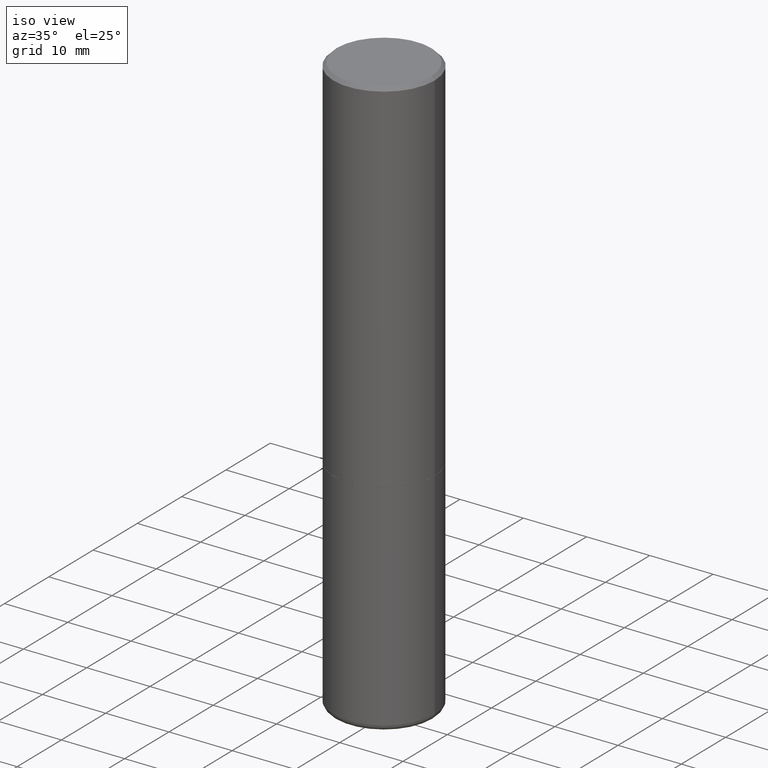
[diagram: clean part render]
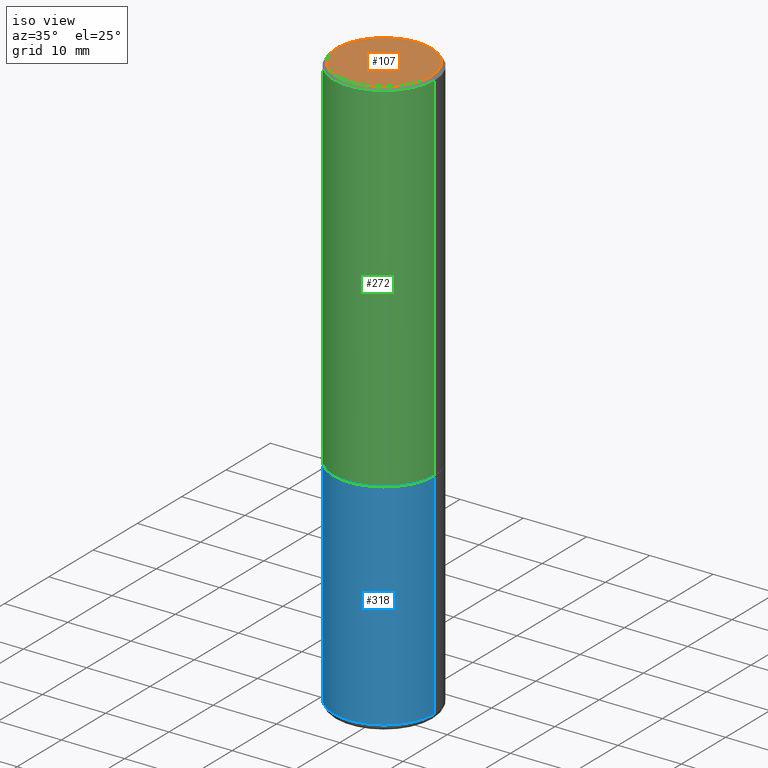
[diagram: same view with three faces highlighted in distinct colors, each labeled with its STEP entity id]
A machine part, iso view with three faces highlighted in distinct colors.
Their STEP definitions:

[orange] entity #107 — the highlighted planar face has unit normal (0, -0, -1).
#19 = CIRCLE ( 'NONE', #56, 0.2949499999999998234 ) ;
#21 = CARTESIAN_POINT ( 'NONE',  ( 0.2949499999999998234, -2.127023677808859286E-15, 1.792775245842319231E-16 ) ) ;
#55 = CARTESIAN_POINT ( 'NONE',  ( -0.2949499999999998234, 2.094539655171995318E-15, 1.792775245842027353E-16 ) ) ;
#56 = AXIS2_PLACEMENT_3D ( 'NONE', #330, #170, #297 ) ;
#59 = AXIS2_PLACEMENT_3D ( 'NONE', #149, #117, #182 ) ;
#77 = DIRECTION ( 'NONE',  ( 2.438088387897960049E-29, -3.491481338843145188E-15, -1.000000000000000000 ) ) ;
#107 = ADVANCED_FACE ( 'NONE', ( #187 ), #274, .F. ) ;
#117 = DIRECTION ( 'NONE',  ( -2.445468806185136597E-29, 3.491481338843145583E-15, 1.000000000000000000 ) ) ;
#132 = AXIS2_PLACEMENT_3D ( 'NONE', #404, #77, #206 ) ;
#138 = EDGE_LOOP ( 'NONE', ( #370, #168 ) ) ;
#149 = CARTESIAN_POINT ( 'NONE',  ( -4.384175940207923203E-45, 6.259441315597878405E-31, 1.792775245842172799E-16 ) ) ;
#168 = ORIENTED_EDGE ( 'NONE', *, *, #278, .T. ) ;
#170 = DIRECTION ( 'NONE',  ( -2.445468806185136597E-29, 3.491481338843145583E-15, 1.000000000000000000 ) ) ;
#182 = DIRECTION ( 'NONE',  ( 1.000000000000000000, -6.982962677686267499E-15, 4.874125435057324435E-29 ) ) ;
#184 = VERTEX_POINT ( 'NONE', #55 ) ;
#187 = FACE_OUTER_BOUND ( 'NONE', #138, .T. ) ;
#206 = DIRECTION ( 'NONE',  ( -1.000000000000000000, 6.982962677686265922E-15, -4.876176775795935793E-29 ) ) ;
#274 = PLANE ( 'NONE',  #132 ) ;
#278 = EDGE_CURVE ( 'NONE', #313, #184, #19, .T. ) ;
#297 = DIRECTION ( 'NONE',  ( 1.000000000000000000, -6.982962677686267499E-15, 4.874125435057324435E-29 ) ) ;
#313 = VERTEX_POINT ( 'NONE', #21 ) ;
#330 = CARTESIAN_POINT ( 'NONE',  ( -4.384175940207923203E-45, 6.259441315597878405E-31, 1.792775245842172799E-16 ) ) ;
#351 = EDGE_CURVE ( 'NONE', #184, #313, #418, .T. ) ;
#370 = ORIENTED_EDGE ( 'NONE', *, *, #351, .T. ) ;
#404 = CARTESIAN_POINT ( 'NONE',  ( 2.059624841783562880E-15, 0.2949499999999998234, -9.401736585996764239E-16 ) ) ;
#418 = CIRCLE ( 'NONE', #59, 0.2949499999999998234 ) ;

[blue] entity #318 — the highlighted cylindrical surface (partial cylindrical patch) has radius 7.9997 mm, axis along (-0, 0, 1).
#11 = EDGE_CURVE ( 'NONE', #14, #198, #113, .T. ) ;
#14 = VERTEX_POINT ( 'NONE', #410 ) ;
#30 = EDGE_CURVE ( 'NONE', #198, #69, #308, .T. ) ;
#46 = CYLINDRICAL_SURFACE ( 'NONE', #191, 0.3149500000000000077 ) ;
#48 = DIRECTION ( 'NONE',  ( 1.000000000000000000, -6.982962677686266711E-15, 0.000000000000000000 ) ) ;
#50 = VECTOR ( 'NONE', #93, 39.37007874015748143 ) ;
#53 = CARTESIAN_POINT ( 'NONE',  ( 0.3149500000000000077, -1.003416821970130712E-14, -2.243999999999999773 ) ) ;
#69 = VERTEX_POINT ( 'NONE', #53 ) ;
#71 = CARTESIAN_POINT ( 'NONE',  ( 0.3149500000000000077, -1.470786513987673949E-14, -3.582599999999999785 ) ) ;
#80 = DIRECTION ( 'NONE',  ( -2.445468806185136877E-29, 3.491481338843145188E-15, 1.000000000000000000 ) ) ;
#91 = CIRCLE ( 'NONE', #150, 0.3149500000000000077 ) ;
#93 = DIRECTION ( 'NONE',  ( -2.445468806185136877E-29, 3.491481338843145188E-15, 1.000000000000000000 ) ) ;
#111 = CARTESIAN_POINT ( 'NONE',  ( 5.487632001079445967E-29, -7.834884124364017250E-15, -2.243999999999999773 ) ) ;
#113 = LINE ( 'NONE', #186, #148 ) ;
#140 = LINE ( 'NONE', #386, #50 ) ;
#148 = VECTOR ( 'NONE', #80, 39.37007874015748143 ) ;
#150 = AXIS2_PLACEMENT_3D ( 'NONE', #261, #225, #323 ) ;
#186 = CARTESIAN_POINT ( 'NONE',  ( -0.3149500000000000077, 2.237854346276435590E-15, -1.549218606675782676E-29 ) ) ;
#191 = AXIS2_PLACEMENT_3D ( 'NONE', #240, #365, #201 ) ;
#194 = ORIENTED_EDGE ( 'NONE', *, *, #30, .F. ) ;
#198 = VERTEX_POINT ( 'NONE', #286 ) ;
#201 = DIRECTION ( 'NONE',  ( 1.000000000000000000, -6.982962677686266711E-15, 4.876176775795936353E-29 ) ) ;
#220 = EDGE_CURVE ( 'NONE', #14, #300, #91, .T. ) ;
#224 = ORIENTED_EDGE ( 'NONE', *, *, #11, .F. ) ;
#225 = DIRECTION ( 'NONE',  ( -2.445468806185136597E-29, 3.491481338843145583E-15, 1.000000000000000000 ) ) ;
#229 = AXIS2_PLACEMENT_3D ( 'NONE', #111, #345, #48 ) ;
#230 = EDGE_LOOP ( 'NONE', ( #224, #358, #288, #194 ) ) ;
#235 = FACE_OUTER_BOUND ( 'NONE', #230, .T. ) ;
#237 = EDGE_CURVE ( 'NONE', #300, #69, #140, .T. ) ;
#240 = CARTESIAN_POINT ( 'NONE',  ( 0.000000000000000000, 0.000000000000000000, 0.000000000000000000 ) ) ;
#261 = CARTESIAN_POINT ( 'NONE',  ( 8.761136545038868759E-29, -1.250858104453945120E-14, -3.582599999999999785 ) ) ;
#286 = CARTESIAN_POINT ( 'NONE',  ( -0.3149500000000000077, -7.933878238175299817E-15, -2.243999999999999773 ) ) ;
#288 = ORIENTED_EDGE ( 'NONE', *, *, #237, .T. ) ;
#300 = VERTEX_POINT ( 'NONE', #71 ) ;
#308 = CIRCLE ( 'NONE', #229, 0.3149500000000000077 ) ;
#318 = ADVANCED_FACE ( 'NONE', ( #235 ), #46, .T. ) ;
#323 = DIRECTION ( 'NONE',  ( 1.000000000000000000, -6.982962677686263555E-15, 0.000000000000000000 ) ) ;
#345 = DIRECTION ( 'NONE',  ( -2.445468806185136597E-29, 3.491481338843145583E-15, 1.000000000000000000 ) ) ;
#358 = ORIENTED_EDGE ( 'NONE', *, *, #220, .T. ) ;
#365 = DIRECTION ( 'NONE',  ( -2.445468806185136597E-29, 3.491481338843145583E-15, 1.000000000000000000 ) ) ;
#386 = CARTESIAN_POINT ( 'NONE',  ( 0.3149500000000000077, -2.199284095337289871E-15, 1.535751875536930130E-29 ) ) ;
#410 = CARTESIAN_POINT ( 'NONE',  ( -0.3149500000000000077, -1.027072669826301679E-14, -3.582599999999999785 ) ) ;

[green] entity #272 — the highlighted cylindrical surface (partial cylindrical patch) has radius 7.9997 mm, axis along (-0, 0, 1).
#24 = DIRECTION ( 'NONE',  ( 1.000000000000000000, -6.982962677686266711E-15, 0.000000000000000000 ) ) ;
#52 = CARTESIAN_POINT ( 'NONE',  ( 0.3149500000000002853, -1.003067673836246727E-14, -2.242999999999999883 ) ) ;
#60 = CYLINDRICAL_SURFACE ( 'NONE', #112, 0.3149500000000001743 ) ;
#61 = DIRECTION ( 'NONE',  ( -2.445468806185136597E-29, 3.491481338843145583E-15, 1.000000000000000000 ) ) ;
#62 = VERTEX_POINT ( 'NONE', #377 ) ;
#63 = FACE_OUTER_BOUND ( 'NONE', #333, .T. ) ;
#75 = CIRCLE ( 'NONE', #282, 0.3149500000000002853 ) ;
#94 = DIRECTION ( 'NONE',  ( -2.445468806185136597E-29, 3.491481338843145583E-15, 1.000000000000000000 ) ) ;
#97 = VERTEX_POINT ( 'NONE', #367 ) ;
#102 = VERTEX_POINT ( 'NONE', #52 ) ;
#112 = AXIS2_PLACEMENT_3D ( 'NONE', #228, #61, #197 ) ;
#116 = EDGE_CURVE ( 'NONE', #97, #62, #275, .T. ) ;
#130 = CARTESIAN_POINT ( 'NONE',  ( 5.485186532273261485E-29, -7.831392643025175821E-15, -2.242999999999999883 ) ) ;
#131 = CARTESIAN_POINT ( 'NONE',  ( -0.3149500000000001743, 2.237854346276436774E-15, -1.549218606675783237E-29 ) ) ;
#192 = ORIENTED_EDGE ( 'NONE', *, *, #395, .F. ) ;
#197 = DIRECTION ( 'NONE',  ( 1.000000000000000000, -6.982962677686265922E-15, 4.876176775795935232E-29 ) ) ;
#202 = ORIENTED_EDGE ( 'NONE', *, *, #116, .F. ) ;
#211 = DIRECTION ( 'NONE',  ( -2.445468806185136877E-29, 3.491481338843145188E-15, 1.000000000000000000 ) ) ;
#217 = EDGE_CURVE ( 'NONE', #393, #102, #75, .T. ) ;
#228 = CARTESIAN_POINT ( 'NONE',  ( 0.000000000000000000, 0.000000000000000000, 0.000000000000000000 ) ) ;
#243 = LINE ( 'NONE', #371, #344 ) ;
#256 = DIRECTION ( 'NONE',  ( -2.445468806185136877E-29, 3.491481338843145188E-15, 1.000000000000000000 ) ) ;
#272 = ADVANCED_FACE ( 'NONE', ( #63 ), #60, .T. ) ;
#275 = CIRCLE ( 'NONE', #387, 0.3149500000000000077 ) ;
#282 = AXIS2_PLACEMENT_3D ( 'NONE', #130, #94, #306 ) ;
#292 = LINE ( 'NONE', #131, #349 ) ;
#306 = DIRECTION ( 'NONE',  ( 1.000000000000000000, -6.982962677686267499E-15, 0.000000000000000000 ) ) ;
#315 = CARTESIAN_POINT ( 'NONE',  ( 4.890937612370289799E-31, -6.982962677686315028E-17, -0.02000000000000006981 ) ) ;
#332 = CARTESIAN_POINT ( 'NONE',  ( -0.3149500000000002853, -1.712756788624580222E-15, -2.242999999999999883 ) ) ;
#333 = EDGE_LOOP ( 'NONE', ( #192, #340, #398, #202 ) ) ;
#337 = DIRECTION ( 'NONE',  ( -2.445468806185136597E-29, 3.491481338843145583E-15, 1.000000000000000000 ) ) ;
#340 = ORIENTED_EDGE ( 'NONE', *, *, #217, .T. ) ;
#344 = VECTOR ( 'NONE', #211, 39.37007874015748143 ) ;
#349 = VECTOR ( 'NONE', #256, 39.37007874015748143 ) ;
#361 = EDGE_CURVE ( 'NONE', #102, #62, #243, .T. ) ;
#367 = CARTESIAN_POINT ( 'NONE',  ( -0.3149500000000000077, 2.129454468560426573E-15, -0.02000000000000006981 ) ) ;
#371 = CARTESIAN_POINT ( 'NONE',  ( 0.3149500000000001743, -2.199284095337290660E-15, 1.535751875536930690E-29 ) ) ;
#377 = CARTESIAN_POINT ( 'NONE',  ( 0.3149500000000000077, -2.230543471175007450E-15, -0.02000000000000006981 ) ) ;
#387 = AXIS2_PLACEMENT_3D ( 'NONE', #315, #337, #24 ) ;
#393 = VERTEX_POINT ( 'NONE', #332 ) ;
#395 = EDGE_CURVE ( 'NONE', #393, #97, #292, .T. ) ;
#398 = ORIENTED_EDGE ( 'NONE', *, *, #361, .T. ) ;